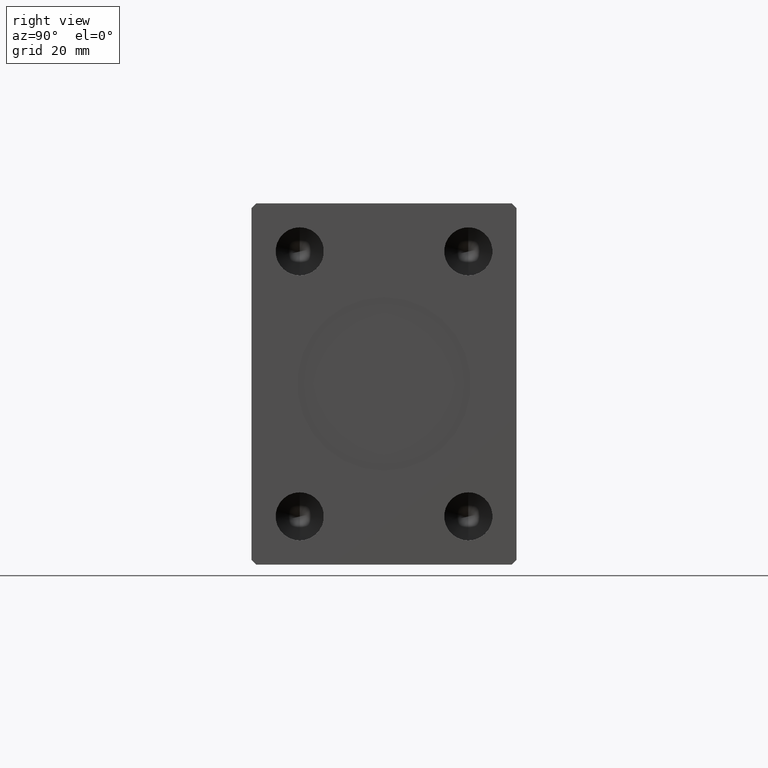
[diagram: clean part render]
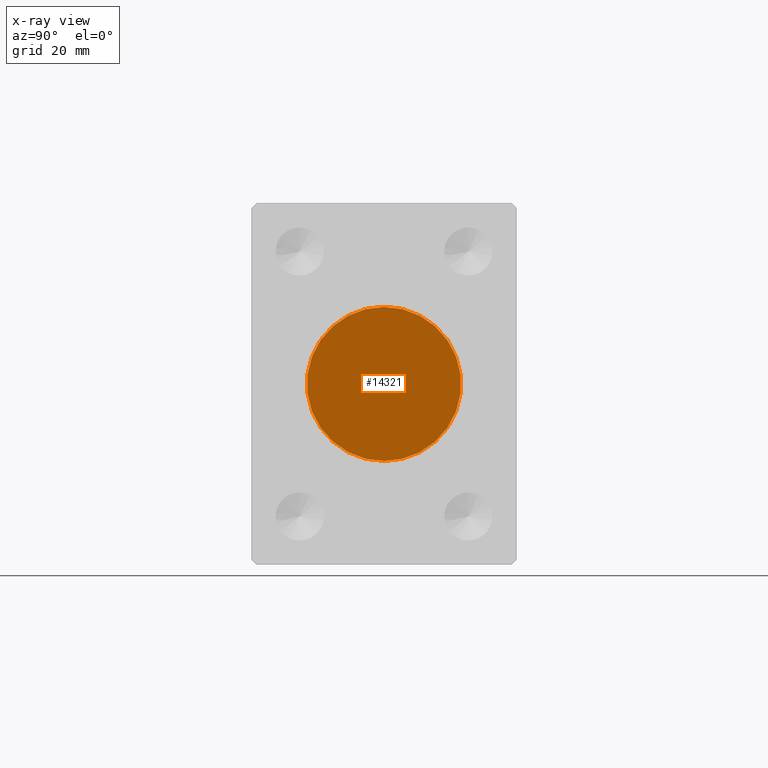
[diagram: x-ray — body ghosted, one internal face saturated and labeled with its STEP entity id]
A machine part, right view, then the same camera in x-ray: the body is ghosted and one INTERNAL B-rep face — a face not visible from any outside direction — is saturated and labeled: STEP entity #14321.
In plain terms, the highlighted planar face has unit normal (-1, 0, 0).
Its self-contained STEP definition (entity closure, byte-faithful):
#2362 = CIRCLE ( 'NONE', #31074, 16.00000000000000000 ) ;
#4587 = EDGE_CURVE ( 'NONE', #12126, #23655, #2362, .T. ) ;
#10487 = DIRECTION ( 'NONE',  ( 1.000000000000000000, 0.000000000000000000, 0.000000000000000000 ) ) ;
#10573 = DIRECTION ( 'NONE',  ( 0.000000000000000000, 0.000000000000000000, 1.000000000000000000 ) ) ;
#10603 = FACE_OUTER_BOUND ( 'NONE', #12061, .T. ) ;
#12061 = EDGE_LOOP ( 'NONE', ( #15302, #14057 ) ) ;
#12126 = VERTEX_POINT ( 'NONE', #20455 ) ;
#13751 = EDGE_CURVE ( 'NONE', #23655, #12126, #32716, .T. ) ;
#14057 = ORIENTED_EDGE ( 'NONE', *, *, #4587, .F. ) ;
#14182 = CARTESIAN_POINT ( 'NONE',  ( 0.000000000000000000, 0.000000000000000000, 0.000000000000000000 ) ) ;
#14321 = ADVANCED_FACE ( 'NONE', ( #10603 ), #24306, .F. ) ;
#14807 = AXIS2_PLACEMENT_3D ( 'NONE', #14182, #27884, #20021 ) ;
#15302 = ORIENTED_EDGE ( 'NONE', *, *, #13751, .F. ) ;
#20021 = DIRECTION ( 'NONE',  ( 1.000000000000000000, 0.000000000000000000, -0.000000000000000000 ) ) ;
#20455 = CARTESIAN_POINT ( 'NONE',  ( 16.00000000000000000, 1.959434878635764737E-15, 0.000000000000000000 ) ) ;
#23655 = VERTEX_POINT ( 'NONE', #31604 ) ;
#24306 = PLANE ( 'NONE',  #14807 ) ;
#25551 = AXIS2_PLACEMENT_3D ( 'NONE', #34290, #41266, #10487 ) ;
#27884 = DIRECTION ( 'NONE',  ( 0.000000000000000000, 0.000000000000000000, 1.000000000000000000 ) ) ;
#28086 = CARTESIAN_POINT ( 'NONE',  ( 0.000000000000000000, 0.000000000000000000, 0.000000000000000000 ) ) ;
#30563 = DIRECTION ( 'NONE',  ( 1.000000000000000000, 0.000000000000000000, 0.000000000000000000 ) ) ;
#31074 = AXIS2_PLACEMENT_3D ( 'NONE', #28086, #10573, #30563 ) ;
#31604 = CARTESIAN_POINT ( 'NONE',  ( -16.00000000000000000, 0.000000000000000000, 0.000000000000000000 ) ) ;
#32716 = CIRCLE ( 'NONE', #25551, 16.00000000000000000 ) ;
#34290 = CARTESIAN_POINT ( 'NONE',  ( 0.000000000000000000, 0.000000000000000000, 0.000000000000000000 ) ) ;
#41266 = DIRECTION ( 'NONE',  ( 0.000000000000000000, 0.000000000000000000, 1.000000000000000000 ) ) ;